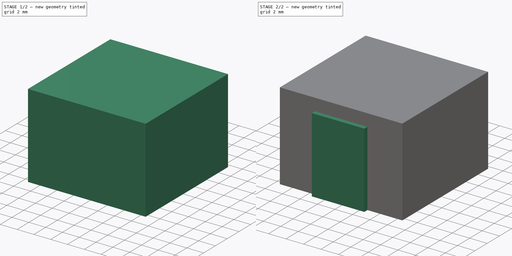
[diagram: build sequence overview — one tinted view per stage of 2, left to right]
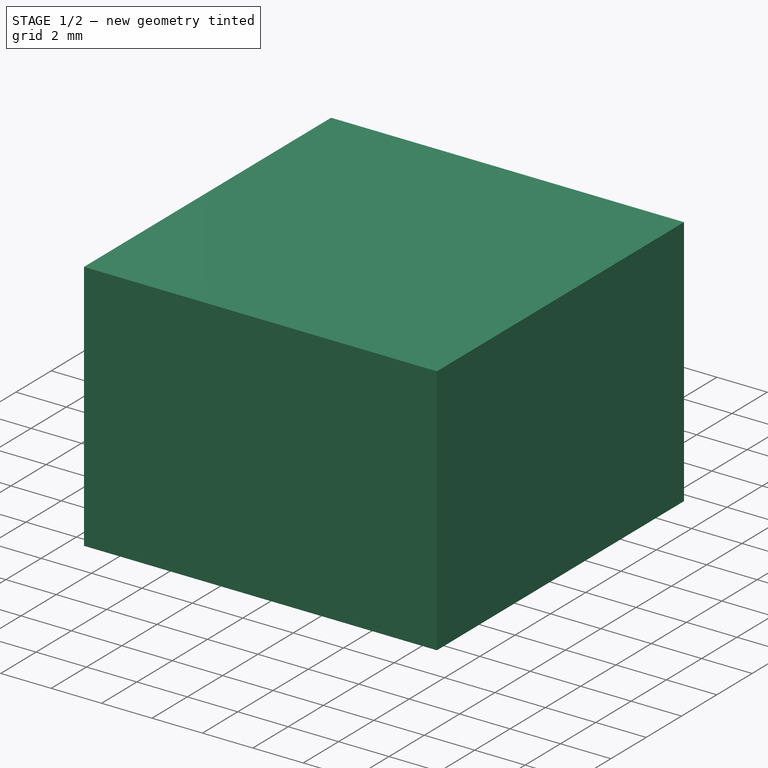
[diagram: stage 1 of 2 — iso view after this stage's code; geometry added in this stage tinted green]
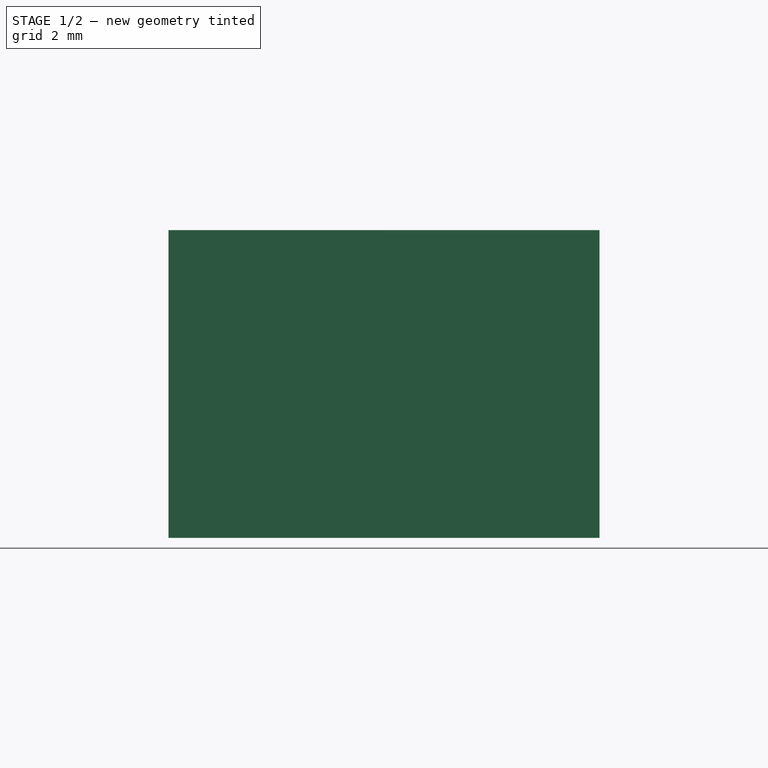
[diagram: stage 1 of 2 — front view after this stage's code; geometry added in this stage tinted green]
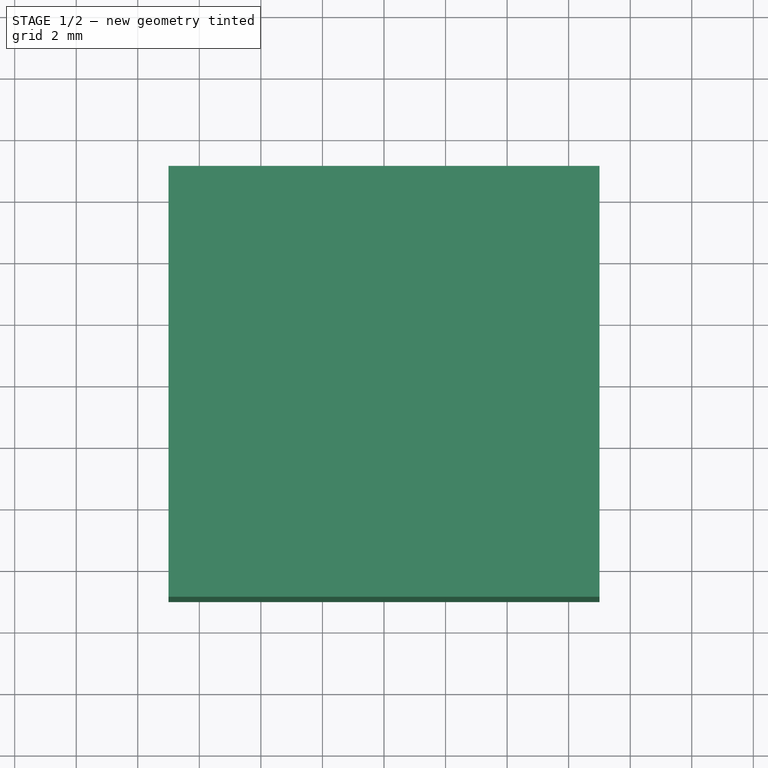
[diagram: stage 1 of 2 — top view after this stage's code; geometry added in this stage tinted green]
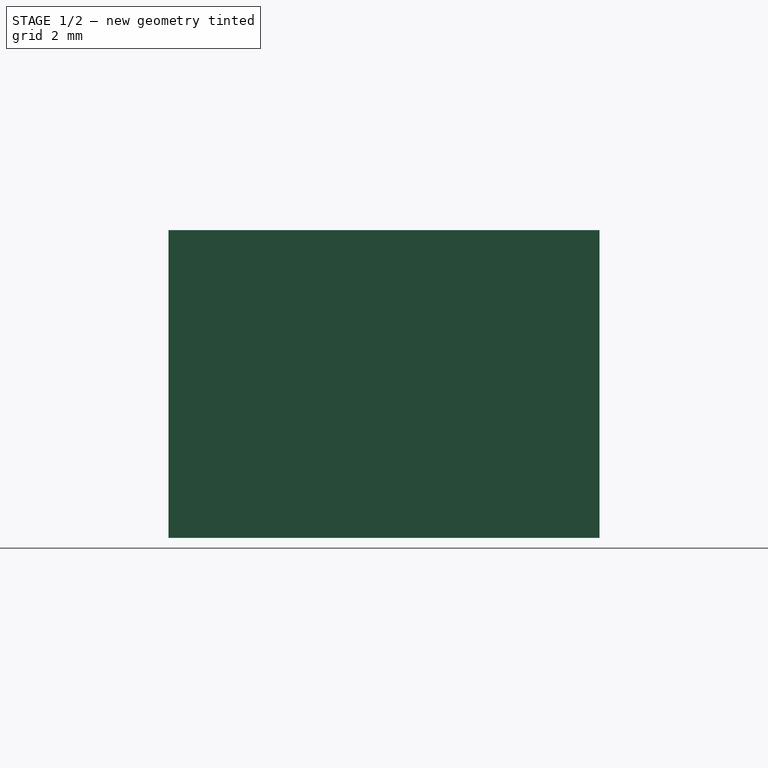
[diagram: stage 1 of 2 — right view after this stage's code; geometry added in this stage tinted green]
FCSTD DOCUMENT  (FreeCAD 0.21R33668 +26 (Git))
Label: MX-Latch-Subtractor2
License: All rights reserved
LicenseURL: http://en.wikipedia.org/wiki/All_rights_reserved
objects: Sketcher::SketchObject×2, PartDesign::Pad×2, App::DocumentObjectGroup×2, PartDesign::Body×1, Part::Refine×1
note: 8 computed .brp shape members not serialized (recipe doc carries the construction recipe); baked Part::Feature solids carry a one-line shape summary decoded from their .brp

FEATURE [Sketcher::SketchObject] Sketch
  FullyConstrained = true
  MapMode = 5
  Support = -> [XY_Plane]
  sketch-geometry (4):
    g0: LineSegment StartX=-7 StartY=7 StartZ=0 EndX=7 EndY=7 EndZ=0
    g1: LineSegment StartX=7 StartY=7 StartZ=0 EndX=7 EndY=-7 EndZ=0
    g2: LineSegment StartX=7 StartY=-7 StartZ=0 EndX=-7 EndY=-7 EndZ=0
    g3: LineSegment StartX=-7 StartY=-7 StartZ=0 EndX=-7 EndY=7 EndZ=0
  constraints (11):
    c: Coincident(g0,g1)
    c: Coincident(g1,g2)
    c: Coincident(g2,g3)
    c: Coincident(g3,g0)
    c: Horizontal(g0)
    c: Horizontal(g2)
    c: Vertical(g1)
    c: Vertical(g3)
    c: Symmetric(g0,g1,g-1)
    c: Equal(g3,g0)
    c: DistanceX(g0,g0) = 14
FEATURE [PartDesign::Pad] Pad
  Direction = (0,0,1)
  Length = 10
  Length2 = 10
  Profile = -> Sketch
  ReferenceAxis = -> Sketch [N_Axis]
  Reversed = true
  Type = 0
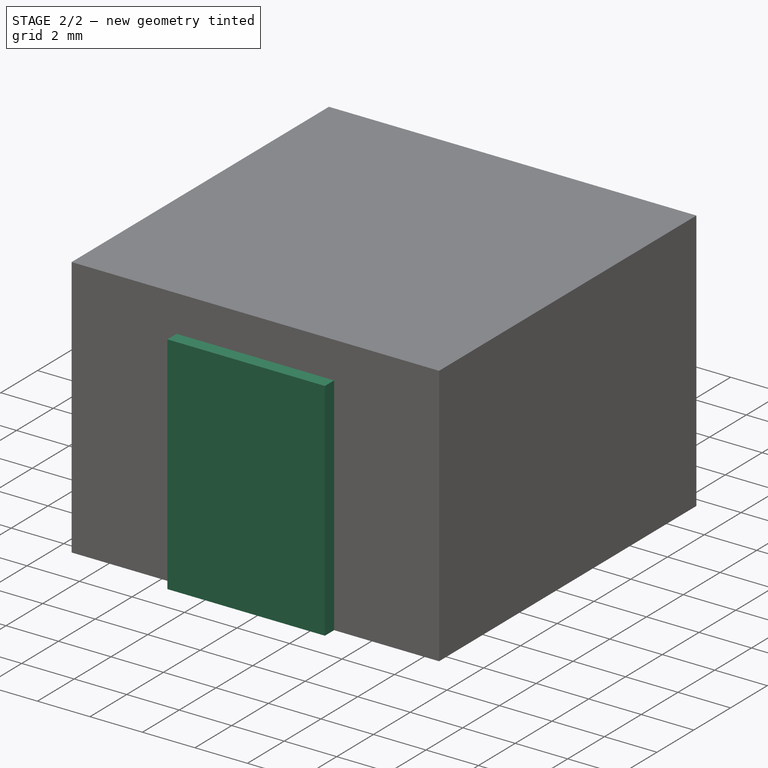
[diagram: stage 2 of 2 — iso view after this stage's code; geometry added in this stage tinted green]
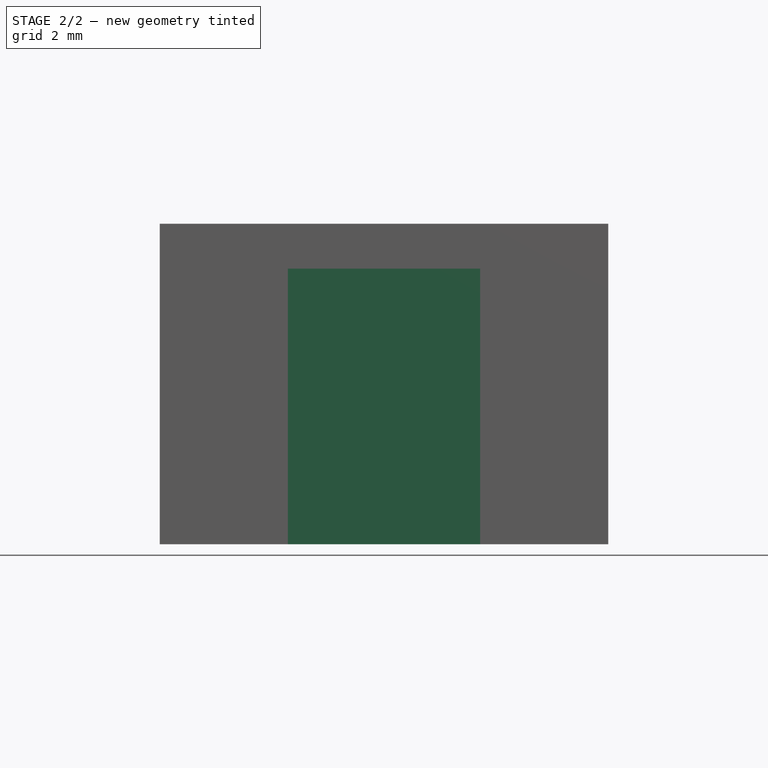
[diagram: stage 2 of 2 — front view after this stage's code; geometry added in this stage tinted green]
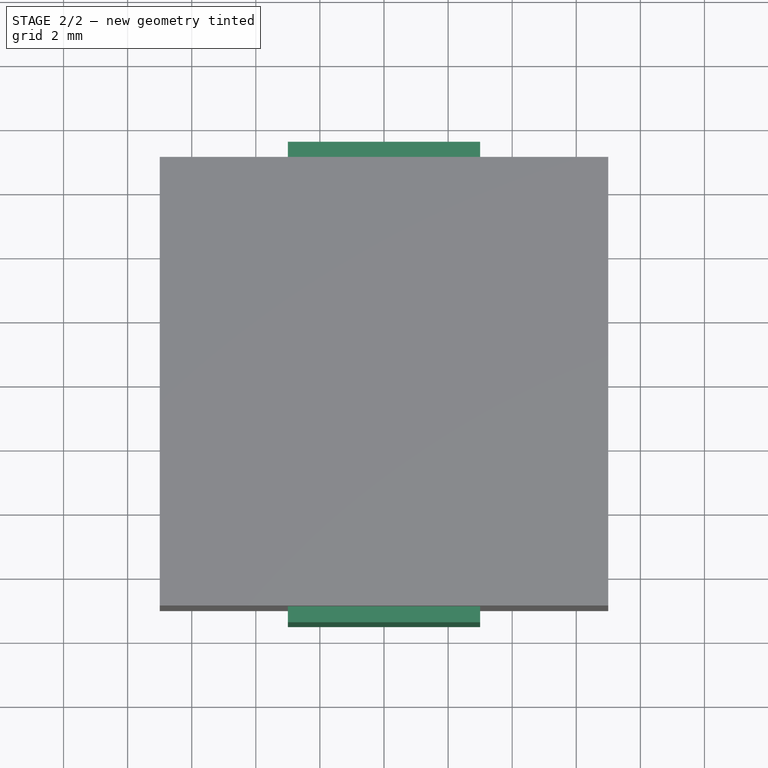
[diagram: stage 2 of 2 — top view after this stage's code; geometry added in this stage tinted green]
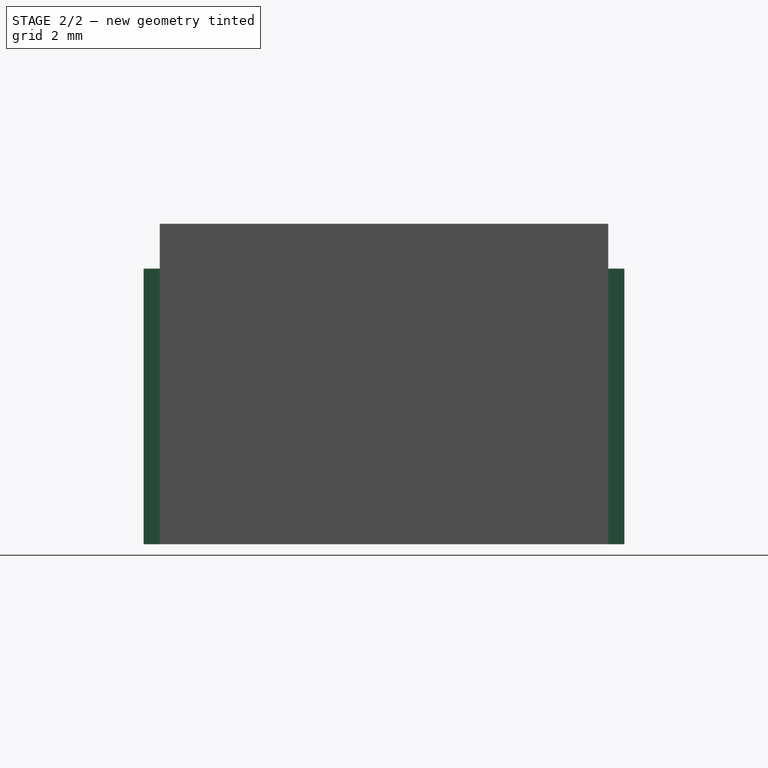
[diagram: stage 2 of 2 — right view after this stage's code; geometry added in this stage tinted green]
FEATURE [Sketcher::SketchObject] Sketch001
  AttachmentOffset = pos=(0,0,-1.4) rot=(0,0,1;0rad)
  ExternalGeometry = -> [Pad]
  FullyConstrained = true
  MapMode = 5
  Placement = pos=(0,0,-1.4) rot=(0,0,1;0rad)
  Support = -> [XY_Plane]
  sketch-geometry (8):
    g0: LineSegment StartX=-3 StartY=7.5 StartZ=0 EndX=3 EndY=7.5 EndZ=0
    g1: LineSegment StartX=3 StartY=7.5 StartZ=0 EndX=3 EndY=7 EndZ=0
    g2: LineSegment StartX=3 StartY=7 StartZ=0 EndX=-3 EndY=7 EndZ=0
    g3: LineSegment StartX=-3 StartY=7 StartZ=0 EndX=-3 EndY=7.5 EndZ=0
    g4: LineSegment StartX=-3 StartY=-7 StartZ=0 EndX=3 EndY=-7 EndZ=0
    g5: LineSegment StartX=3 StartY=-7 StartZ=0 EndX=3 EndY=-7.5 EndZ=0
    g6: LineSegment StartX=3 StartY=-7.5 StartZ=0 EndX=-3 EndY=-7.5 EndZ=0
    g7: LineSegment StartX=-3 StartY=-7.5 StartZ=0 EndX=-3 EndY=-7 EndZ=0
  constraints (23):
    c: Coincident(g0,g1)
    c: Coincident(g1,g2)
    c: Coincident(g2,g3)
    c: Coincident(g3,g0)
    c: Horizontal(g0)
    c: Horizontal(g2)
    c: Vertical(g1)
    c: Vertical(g3)
    c: Coincident(g4,g5)
    c: Coincident(g5,g6)
    c: Coincident(g6,g7)
    c: Coincident(g7,g4)
    c: Horizontal(g4)
    c: Horizontal(g6)
    c: Vertical(g5)
    c: Vertical(g7)
    c: Equal(g3,g7)
    c: Equal(g6,g0)
    c: DistanceY(g1,g1) = 0.5
    c: DistanceX(g0,g0) = 6
    c: Horizontal(g2,g-3)
    c: Symmetric(g2,g4,g-1)
    c: Vertical(g1,g4)
FEATURE [PartDesign::Pad] Pad001
  BaseFeature = -> Pad
  Direction = (0,0,1)
  Length = 10
  Length2 = 10
  Profile = -> Sketch001
  ReferenceAxis = -> Sketch001 [N_Axis]
  Reversed = true
  Type = 1
FEATURE [PartDesign::Body] Body  label="MX-Latch-Subtractor2"
  Group = -> [Sketch,Pad,Sketch001,Pad001]
  Origin = -> Origin
  Tip = -> Pad001
FEATURE [Part::Refine] Body001  label="MX-Latch-Subtractor2N"
  Source = -> Body
FEATURE [App::DocumentObjectGroup] Group  label="Base Part"
  Group = -> [Body]
FEATURE [App::DocumentObjectGroup] Group001  label="Refined Copy"
  Group = -> [Body001]
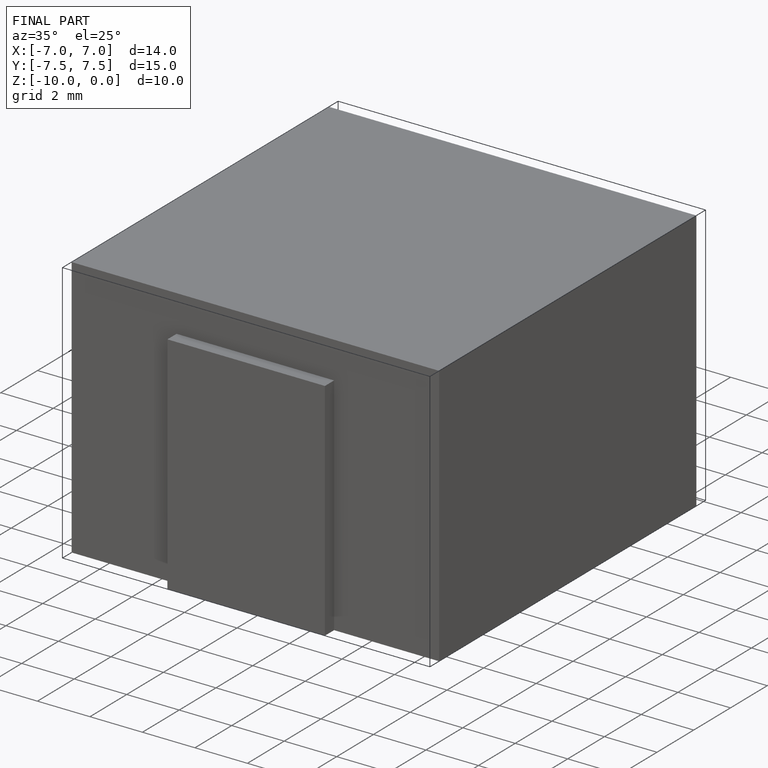
[diagram: finished part — iso view with bounding-box wireframe]
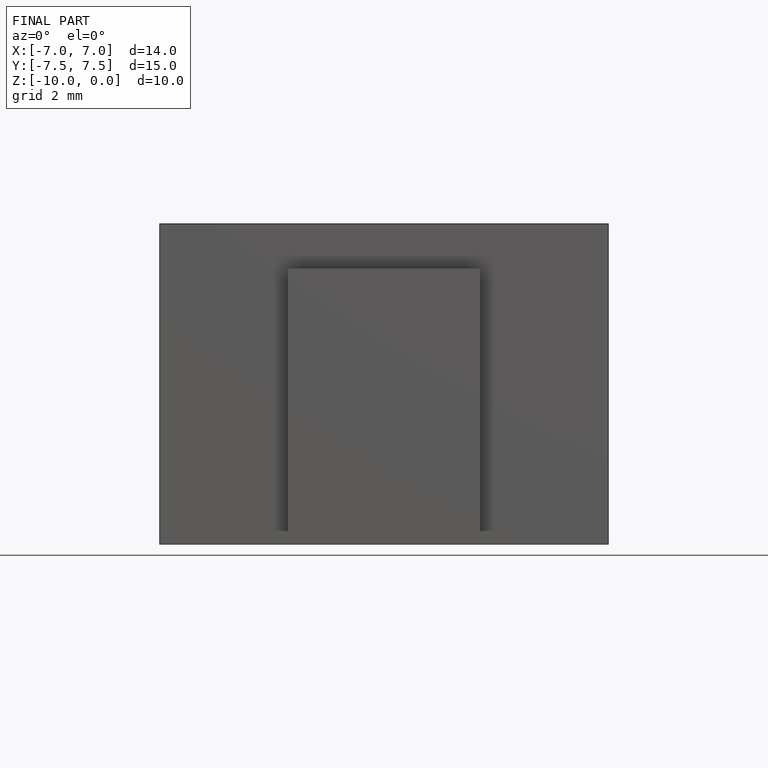
[diagram: finished part — front view with bounding-box wireframe]
